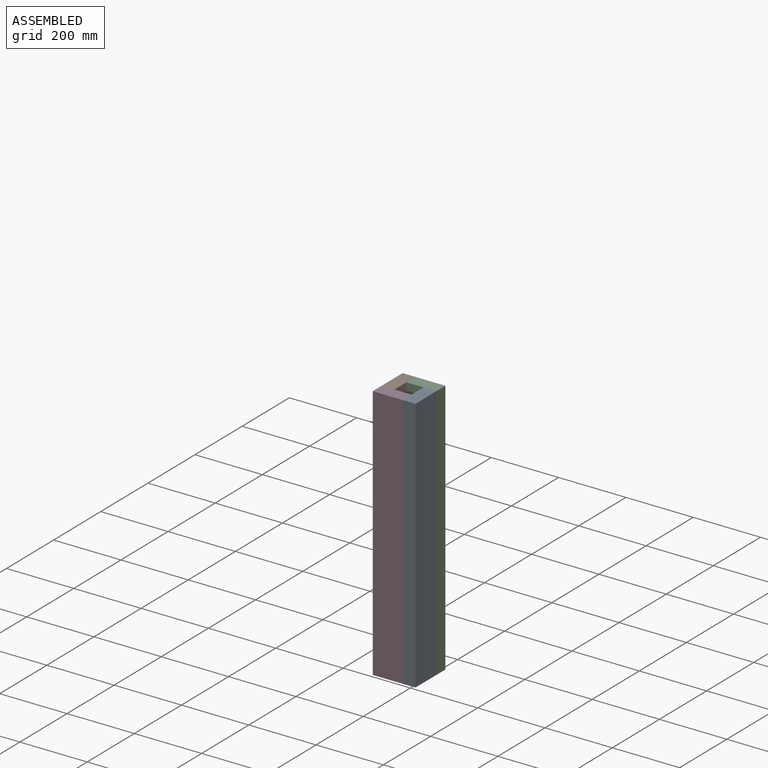
[diagram: assembled view]
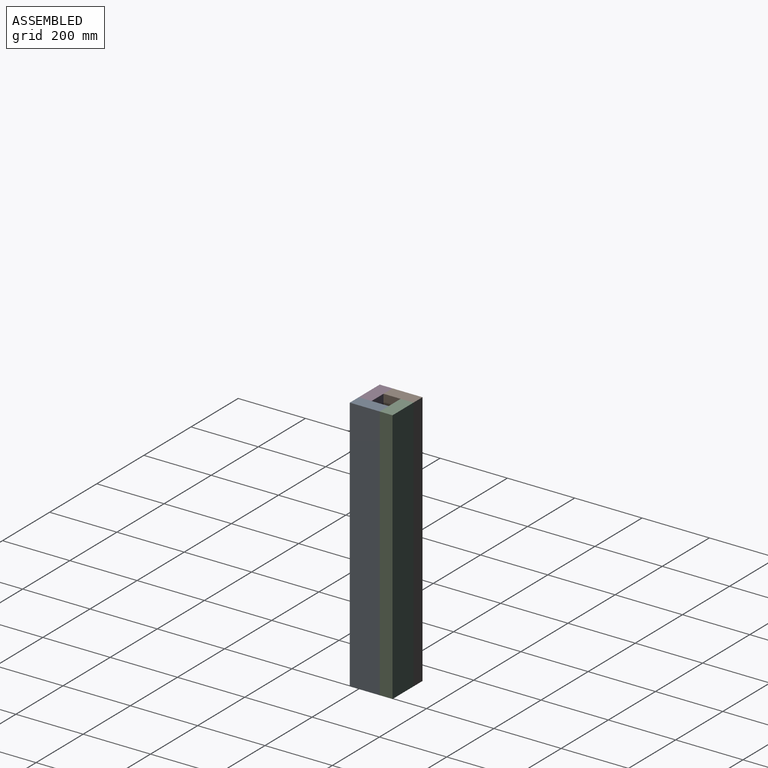
[diagram: assembled view, second angle]
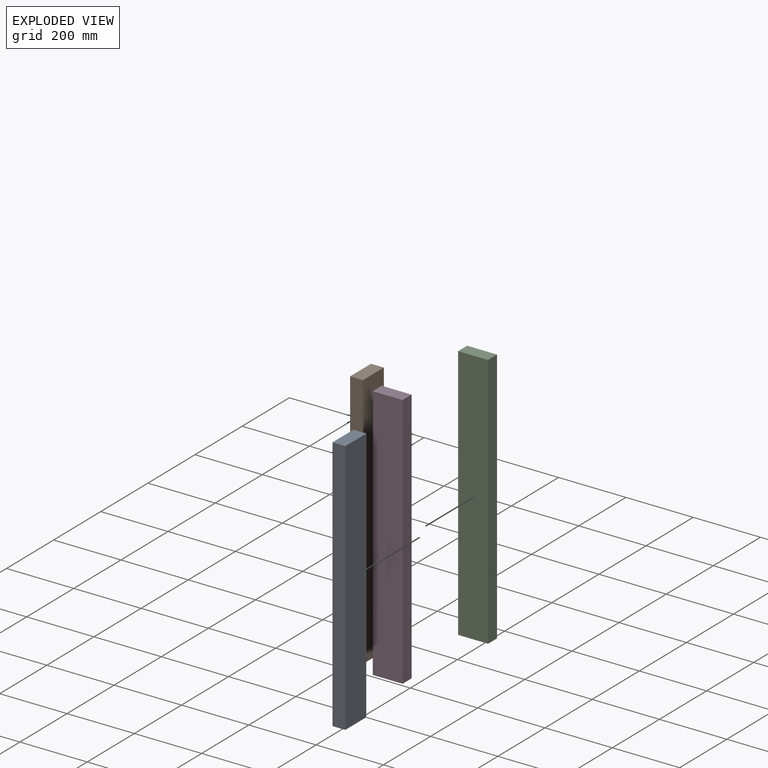
[diagram: exploded view]
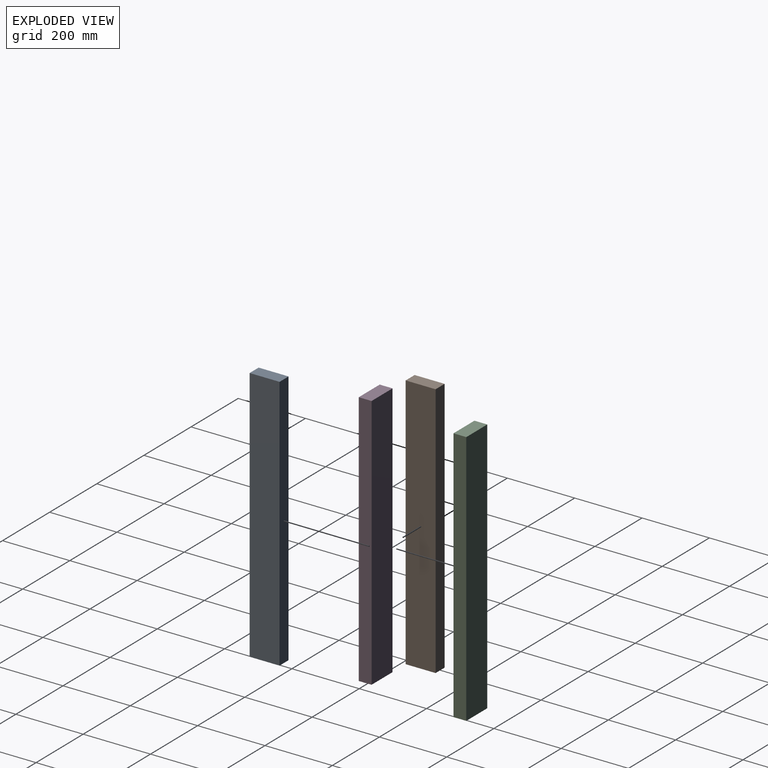
[diagram: exploded view, second angle]
ASSEMBLY  parts=4 mates=9
PART A: 6 faces, bbox 88.9x38.1x762 mm
  f0: plane 762x38.1mm, normal (-1,0,0), area 29032.2mm2, adj f1,f3,f4,f5
  f1: plane 762x88.9mm, normal (0,-1,0), area 67741.8mm2, adj f0,f2,f4,f5
  f2: plane 762x38.1mm, normal (1,0,0), area 29032.2mm2, adj f1,f3,f4,f5
  f3: plane 762x88.9mm, normal (0,1,0), area 67741.8mm2, adj f0,f2,f4,f5
  f4: plane 88.9x38.1mm, normal (0,0,1), area 3387.1mm2, adj f0,f1,f2,f3
  f5: plane 88.9x38.1mm, normal (0,0,-1), area 3387.1mm2, adj f0,f1,f2,f3
PART B: same geometry as A
PART C: same geometry as A
PART D: same geometry as A
PLACE A rot(axis=(0,0,-1),90deg) t=(185.21,-122.76,-259.24)mm
PLACE B rot(axis=(0,0,-1),90deg) t=(96.31,-84.66,-259.24)mm
PLACE C rot(axis=(0,0,1),0deg) t=(134.41,-122.76,-259.24)mm
PLACE D t=(96.31,-211.66,-259.24)mm
MATE planar A.f0 <-> C.f1  axis (0,1,0) through (204.26,-122.76,121.76)mm
MATE planar D.f4 <-> A.f4  axis (0,0,1) through (185.21,-192.61,502.76)mm
MATE planar B.f0 <-> C.f3  axis (0,1,0) through (115.36,-84.66,121.76)mm
MATE planar D.f4 <-> B.f4  axis (0,0,1) through (140.76,-192.61,502.76)mm
MATE planar D.f3 <-> B.f2  axis (0,1,0) through (140.76,-173.56,121.76)mm
MATE planar D.f0 <-> B.f1  axis (-1,0,0) through (96.31,-192.61,121.76)mm
MATE planar B.f3 <-> C.f0  axis (1,0,0) through (134.41,-129.11,121.76)mm
MATE planar A.f1 <-> D.f2  axis (-1,0,0) through (185.21,-167.21,121.76)mm
MATE planar B.f4 <-> C.f4  axis (0,0,1) through (115.36,-129.11,502.76)mm
